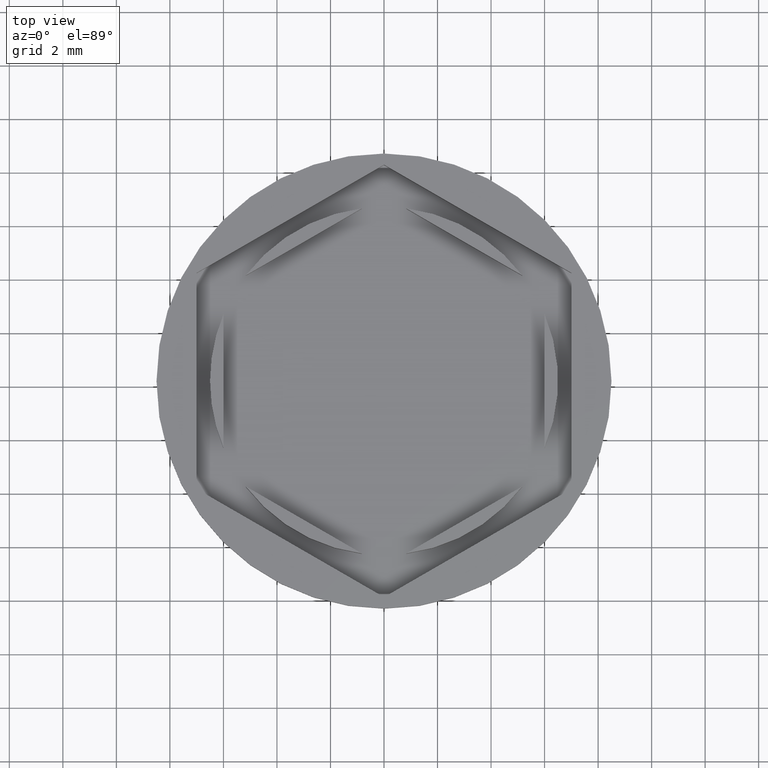
[diagram: clean part render]
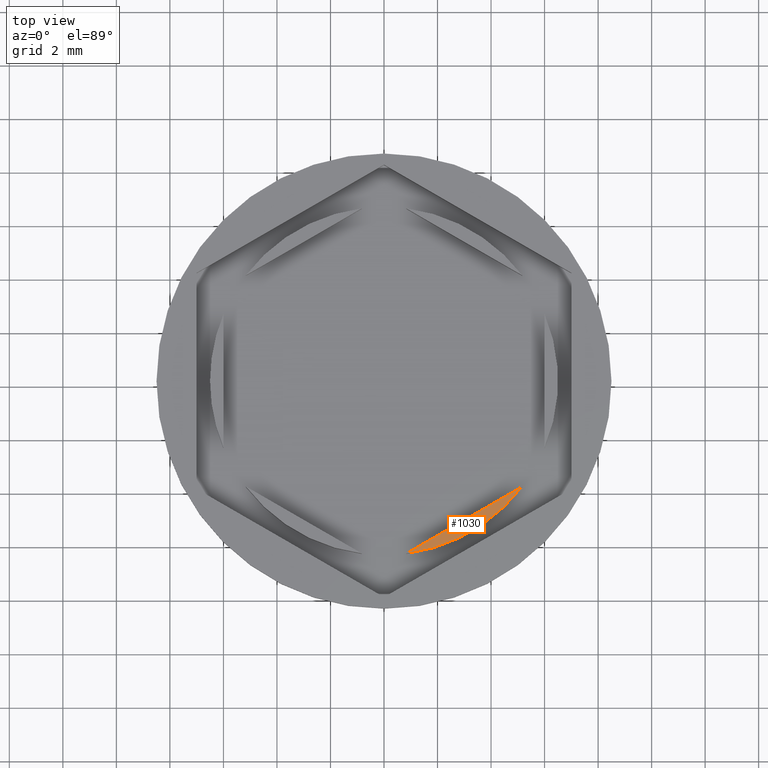
[diagram: same view with one face highlighted and labeled with its STEP entity id]
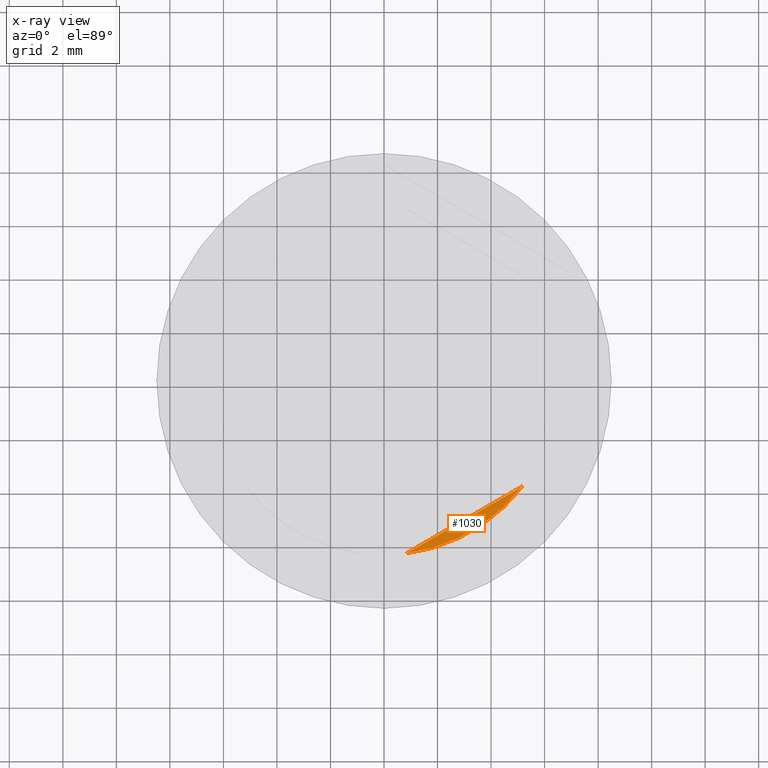
[diagram: x-ray of the same camera — body ghosted, the highlighted face saturated]
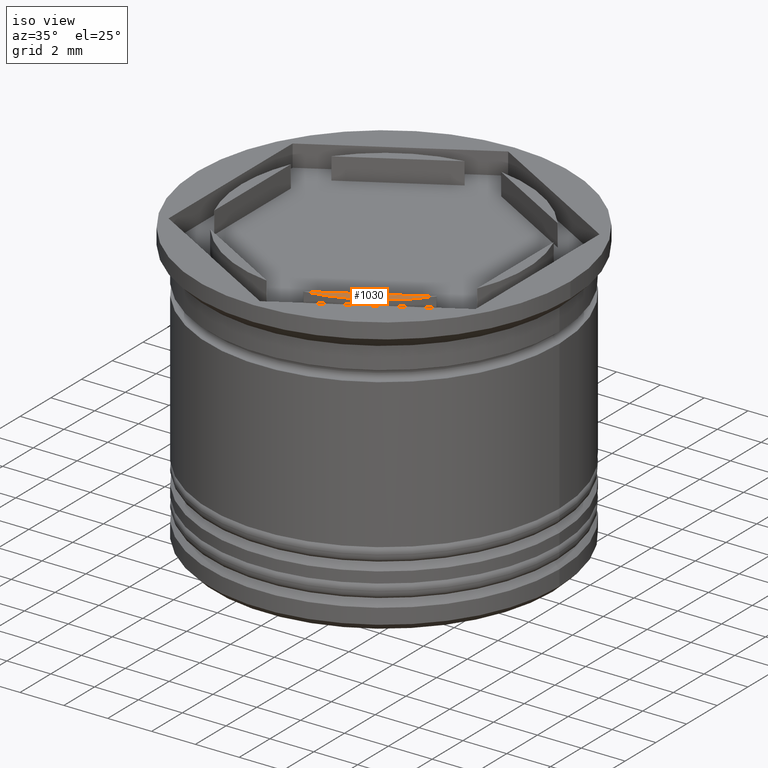
[diagram: same view with one face highlighted and labeled with its STEP entity id]
A machine part, top view. The second image highlights one B-rep face of the part: STEP entity #1030.
The next image is the same camera in x-ray: the body ghosted, the highlighted face saturated — about 0% of this face is hidden behind the body in this view.
A second angle (iso view) of the same face is appended — the face is thin or edge-on in the first view.
In plain terms, the highlighted planar face has unit normal (0, -0, 1).
Its self-contained STEP definition (entity closure, byte-faithful):
#88 = AXIS2_PLACEMENT_3D ( 'NONE', #393, #983, #1742 ) ;
#102 = LINE ( 'NONE', #838, #165 ) ;
#165 = VECTOR ( 'NONE', #699, 999.9999999999998863 ) ;
#174 = EDGE_CURVE ( 'NONE', #1049, #883, #102, .T. ) ;
#189 = FACE_OUTER_BOUND ( 'NONE', #1773, .T. ) ;
#354 = CARTESIAN_POINT ( 'NONE',  ( 0.8349364905389020652, -6.446152422706632024, 0.000000000000000000 ) ) ;
#393 = CARTESIAN_POINT ( 'NONE',  ( 0.000000000000000000, 0.000000000000000000, 0.000000000000000000 ) ) ;
#683 = DIRECTION ( 'NONE',  ( 0.000000000000000000, -0.000000000000000000, 1.000000000000000000 ) ) ;
#699 = DIRECTION ( 'NONE',  ( 0.8660254037844388186, 0.4999999999999998335, 0.000000000000000000 ) ) ;
#812 = ORIENTED_EDGE ( 'NONE', *, *, #1540, .T. ) ;
#828 = CARTESIAN_POINT ( 'NONE',  ( 0.000000000000000000, 0.000000000000000000, 0.000000000000000000 ) ) ;
#838 = CARTESIAN_POINT ( 'NONE',  ( 2.999999999999998224, -5.196152422706632912, 0.000000000000000000 ) ) ;
#883 = VERTEX_POINT ( 'NONE', #1556 ) ;
#937 = AXIS2_PLACEMENT_3D ( 'NONE', #828, #683, #1889 ) ;
#983 = DIRECTION ( 'NONE',  ( -0.000000000000000000, -0.000000000000000000, 1.000000000000000000 ) ) ;
#1030 = ADVANCED_FACE ( 'NONE', ( #189 ), #1250, .T. ) ;
#1049 = VERTEX_POINT ( 'NONE', #354 ) ;
#1250 = PLANE ( 'NONE',  #937 ) ;
#1406 = ORIENTED_EDGE ( 'NONE', *, *, #174, .F. ) ;
#1540 = EDGE_CURVE ( 'NONE', #1049, #883, #1854, .T. ) ;
#1556 = CARTESIAN_POINT ( 'NONE',  ( 5.165063509461093716, -3.946152422706633356, 0.000000000000000000 ) ) ;
#1742 = DIRECTION ( 'NONE',  ( 1.000000000000000000, 0.000000000000000000, 0.000000000000000000 ) ) ;
#1773 = EDGE_LOOP ( 'NONE', ( #1406, #812 ) ) ;
#1854 = CIRCLE ( 'NONE', #88, 6.500000000000000888 ) ;
#1889 = DIRECTION ( 'NONE',  ( 1.000000000000000000, 0.000000000000000000, 0.000000000000000000 ) ) ;